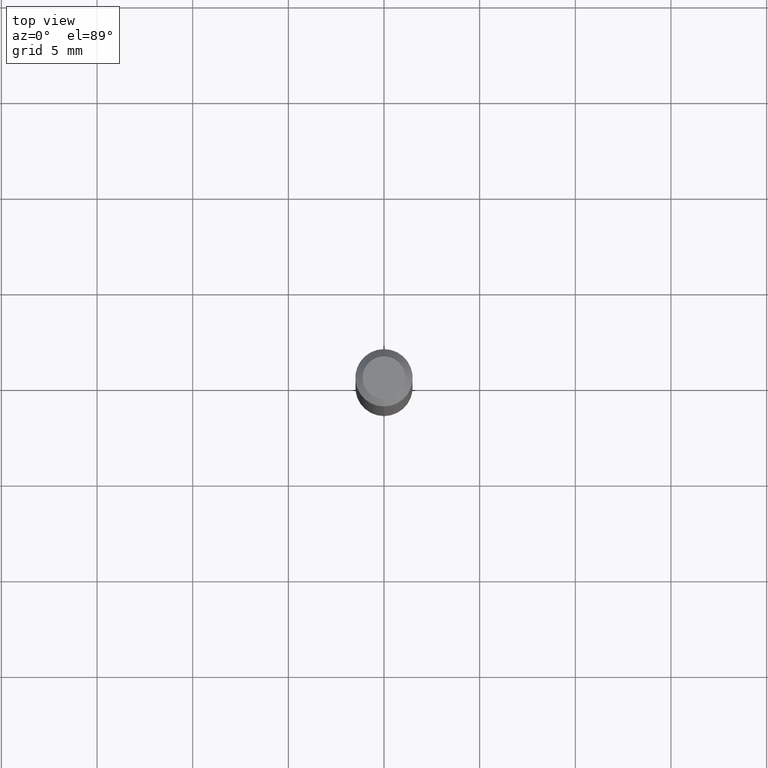
[diagram: clean part render]
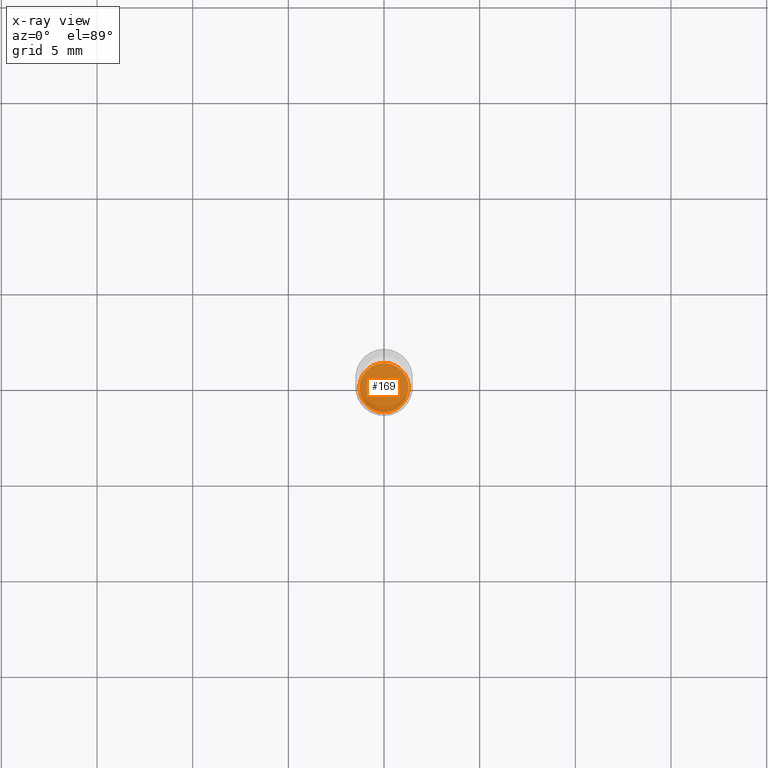
[diagram: x-ray — body ghosted, one internal face saturated and labeled with its STEP entity id]
A machine part, top view, then the same camera in x-ray: the body is ghosted and one INTERNAL B-rep face — a face not visible from any outside direction — is saturated and labeled: STEP entity #169.
In plain terms, the highlighted planar face has unit normal (-0, 0, 1).
Its self-contained STEP definition (entity closure, byte-faithful):
#81 = ORIENTED_EDGE ( 'NONE', *, *, #429, .F. ) ;
#141 = ORIENTED_EDGE ( 'NONE', *, *, #160, .F. ) ;
#147 = FACE_OUTER_BOUND ( 'NONE', #384, .T. ) ;
#151 = DIRECTION ( 'NONE',  ( -2.445541197990066903E-29, 3.491377669658199558E-15, 1.000000000000000000 ) ) ;
#160 = EDGE_CURVE ( 'NONE', #461, #338, #503, .T. ) ;
#169 = ADVANCED_FACE ( 'NONE', ( #147 ), #297, .F. ) ;
#187 = AXIS2_PLACEMENT_3D ( 'NONE', #332, #380, #339 ) ;
#261 = CARTESIAN_POINT ( 'NONE',  ( 2.907748484410189276E-29, -4.151248049223599265E-15, -1.188999999999999835 ) ) ;
#262 = AXIS2_PLACEMENT_3D ( 'NONE', #512, #151, #304 ) ;
#289 = DIRECTION ( 'NONE',  ( -2.445541197990066903E-29, 3.491377669658199163E-15, 1.000000000000000000 ) ) ;
#297 = PLANE ( 'NONE',  #320 ) ;
#304 = DIRECTION ( 'NONE',  ( -6.982962677686265922E-15, -1.000000000000000000, 2.694130171266531790E-15 ) ) ;
#320 = AXIS2_PLACEMENT_3D ( 'NONE', #261, #289, #422 ) ;
#325 = CARTESIAN_POINT ( 'NONE',  ( -3.540362077586646535E-16, -0.05070000000000415147, -1.188999999999999835 ) ) ;
#332 = CARTESIAN_POINT ( 'NONE',  ( 2.907748484410189276E-29, -4.151248049223599265E-15, -1.188999999999999835 ) ) ;
#338 = VERTEX_POINT ( 'NONE', #325 ) ;
#339 = DIRECTION ( 'NONE',  ( -6.982962677686265922E-15, -1.000000000000000000, 2.694130171266531790E-15 ) ) ;
#380 = DIRECTION ( 'NONE',  ( -2.445541197990066903E-29, 3.491377669658199558E-15, 1.000000000000000000 ) ) ;
#384 = EDGE_LOOP ( 'NONE', ( #81, #141 ) ) ;
#422 = DIRECTION ( 'NONE',  ( -6.982962677686265922E-15, -1.000000000000000000, 3.491377669658199163E-15 ) ) ;
#429 = EDGE_CURVE ( 'NONE', #338, #461, #494, .T. ) ;
#461 = VERTEX_POINT ( 'NONE', #476 ) ;
#476 = CARTESIAN_POINT ( 'NONE',  ( 3.620215238698003470E-16, 0.05069999999999585255, -1.189000000000000057 ) ) ;
#494 = CIRCLE ( 'NONE', #262, 0.05070000000000000201 ) ;
#503 = CIRCLE ( 'NONE', #187, 0.05070000000000000201 ) ;
#512 = CARTESIAN_POINT ( 'NONE',  ( 2.907748484410189276E-29, -4.151248049223599265E-15, -1.188999999999999835 ) ) ;